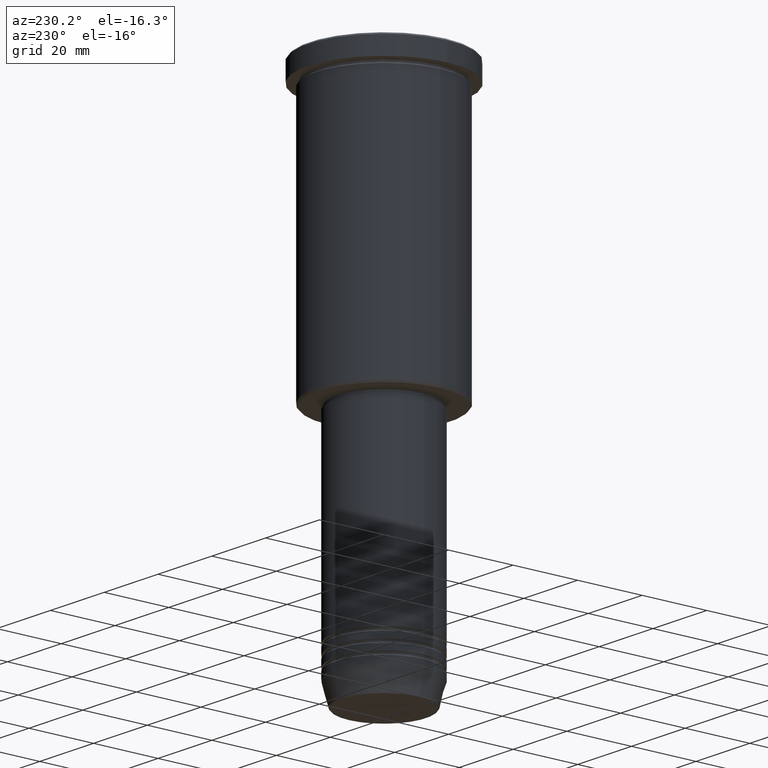
[diagram: clean part render]
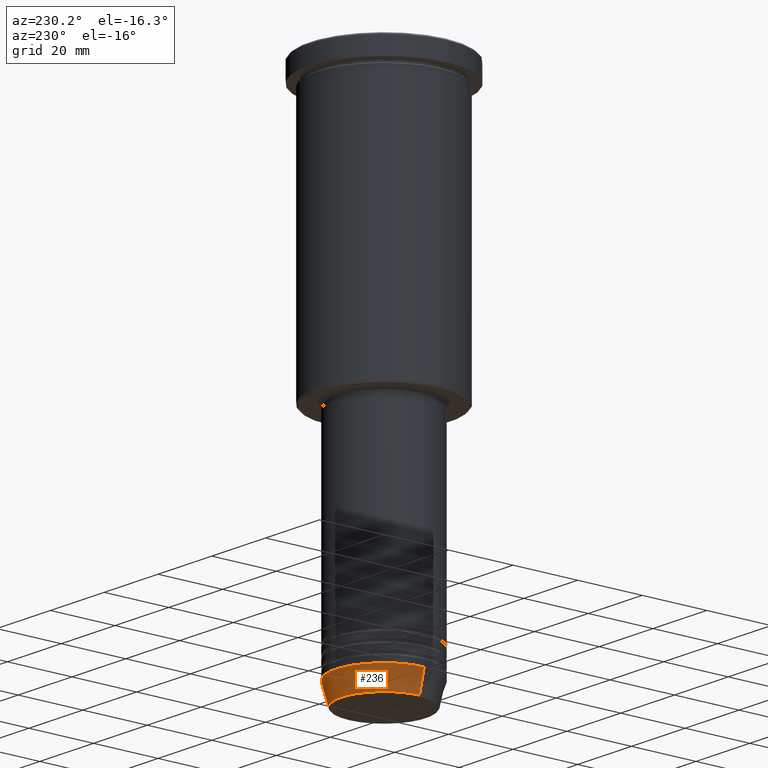
[diagram: same view with one face highlighted and labeled with its STEP entity id]
A machine part, auxiliary view. The second image highlights one B-rep face of the part: STEP entity #236.
In plain terms, the highlighted conical surface has half-angle 15 deg.
Its self-contained STEP definition (entity closure, byte-faithful):
#48 = EDGE_LOOP ( 'NONE', ( #427, #164, #815, #203 ) ) ;
#59 = CIRCLE ( 'NONE', #434, 13.22365507213719305 ) ;
#99 = DIRECTION ( 'NONE',  ( 0.2588190451025213501, 0.000000000000000000, 0.9659258262890680902 ) ) ;
#107 = CARTESIAN_POINT ( 'NONE',  ( 15.00000000000000000, 0.000000000000000000, -154.0000000000000000 ) ) ;
#131 = CARTESIAN_POINT ( 'NONE',  ( -13.22365507213719305, 1.728200442216588583E-15, -160.6294095225512137 ) ) ;
#163 = DIRECTION ( 'NONE',  ( 1.000000000000000000, 0.000000000000000000, 0.000000000000000000 ) ) ;
#164 = ORIENTED_EDGE ( 'NONE', *, *, #730, .T. ) ;
#183 = LINE ( 'NONE', #915, #734 ) ;
#203 = ORIENTED_EDGE ( 'NONE', *, *, #298, .F. ) ;
#236 = ADVANCED_FACE ( 'NONE', ( #370 ), #342, .T. ) ;
#286 = CARTESIAN_POINT ( 'NONE',  ( 0.000000000000000000, 0.000000000000000000, -154.0000000000000000 ) ) ;
#298 = EDGE_CURVE ( 'NONE', #747, #791, #183, .T. ) ;
#335 = DIRECTION ( 'NONE',  ( -0.2588190451025213501, 3.169619151431772337E-17, 0.9659258262890680902 ) ) ;
#338 = CARTESIAN_POINT ( 'NONE',  ( 13.22365507213719305, 0.000000000000000000, -160.6294095225512137 ) ) ;
#342 = CONICAL_SURFACE ( 'NONE', #621, 15.00000000000000000, 0.2617993877991500740 ) ;
#346 = DIRECTION ( 'NONE',  ( -0.000000000000000000, -0.000000000000000000, 1.000000000000000000 ) ) ;
#351 = CARTESIAN_POINT ( 'NONE',  ( 0.000000000000000000, 0.000000000000000000, -160.6294095225512137 ) ) ;
#370 = FACE_OUTER_BOUND ( 'NONE', #48, .T. ) ;
#423 = VERTEX_POINT ( 'NONE', #700 ) ;
#427 = ORIENTED_EDGE ( 'NONE', *, *, #737, .T. ) ;
#434 = AXIS2_PLACEMENT_3D ( 'NONE', #351, #617, #163 ) ;
#491 = AXIS2_PLACEMENT_3D ( 'NONE', #686, #346, #528 ) ;
#512 = VERTEX_POINT ( 'NONE', #131 ) ;
#528 = DIRECTION ( 'NONE',  ( 1.000000000000000000, 0.000000000000000000, 0.000000000000000000 ) ) ;
#617 = DIRECTION ( 'NONE',  ( -0.000000000000000000, -0.000000000000000000, 1.000000000000000000 ) ) ;
#621 = AXIS2_PLACEMENT_3D ( 'NONE', #286, #744, #1007 ) ;
#645 = EDGE_CURVE ( 'NONE', #791, #423, #1003, .T. ) ;
#686 = CARTESIAN_POINT ( 'NONE',  ( 0.000000000000000000, 0.000000000000000000, -154.0000000000000000 ) ) ;
#700 = CARTESIAN_POINT ( 'NONE',  ( -15.00000000000000000, 1.836970198721029589E-15, -154.0000000000000000 ) ) ;
#730 = EDGE_CURVE ( 'NONE', #512, #423, #877, .T. ) ;
#734 = VECTOR ( 'NONE', #99, 1000.000000000000000 ) ;
#737 = EDGE_CURVE ( 'NONE', #747, #512, #59, .T. ) ;
#744 = DIRECTION ( 'NONE',  ( -0.000000000000000000, -0.000000000000000000, 1.000000000000000000 ) ) ;
#747 = VERTEX_POINT ( 'NONE', #338 ) ;
#791 = VERTEX_POINT ( 'NONE', #107 ) ;
#815 = ORIENTED_EDGE ( 'NONE', *, *, #645, .F. ) ;
#877 = LINE ( 'NONE', #1063, #1135 ) ;
#915 = CARTESIAN_POINT ( 'NONE',  ( 15.00000000000000000, 0.000000000000000000, -154.0000000000000000 ) ) ;
#1003 = CIRCLE ( 'NONE', #491, 15.00000000000000000 ) ;
#1007 = DIRECTION ( 'NONE',  ( 1.000000000000000000, 0.000000000000000000, 0.000000000000000000 ) ) ;
#1063 = CARTESIAN_POINT ( 'NONE',  ( -15.00000000000000000, 1.836970198721029589E-15, -154.0000000000000000 ) ) ;
#1135 = VECTOR ( 'NONE', #335, 1000.000000000000000 ) ;